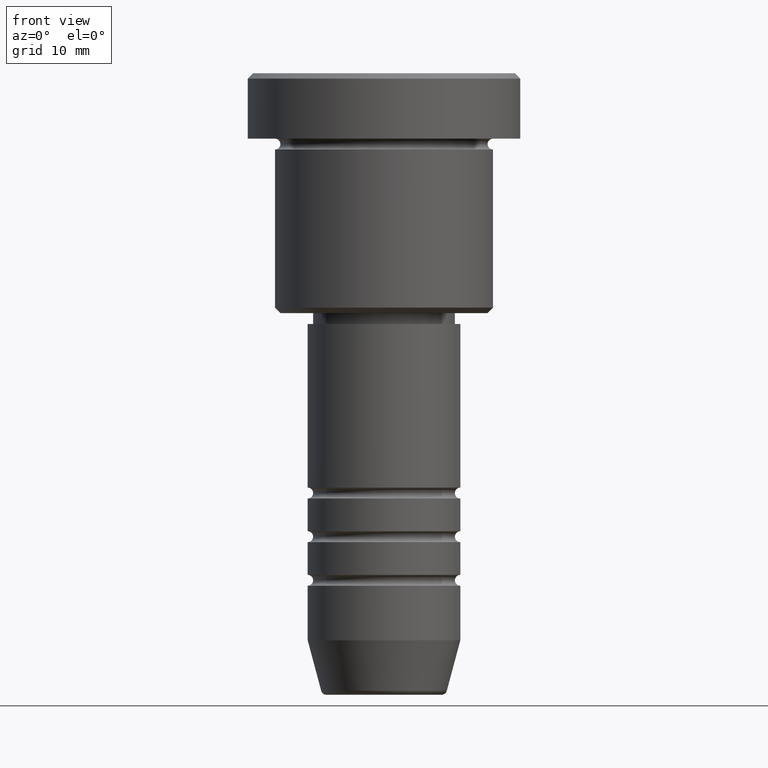
[diagram: clean part render]
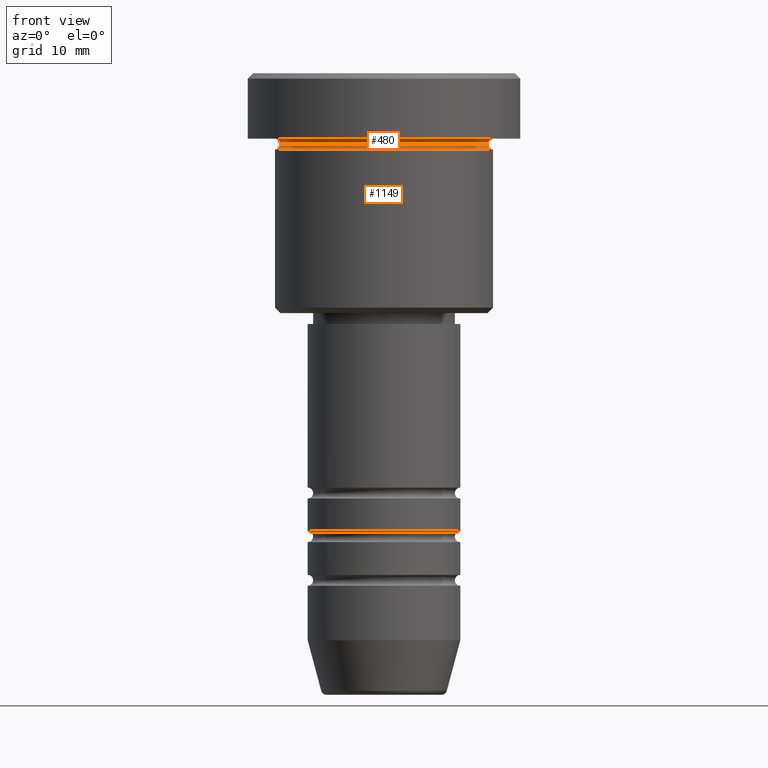
[diagram: same view with one multi-face feature highlighted, each face labeled with its STEP entity id]
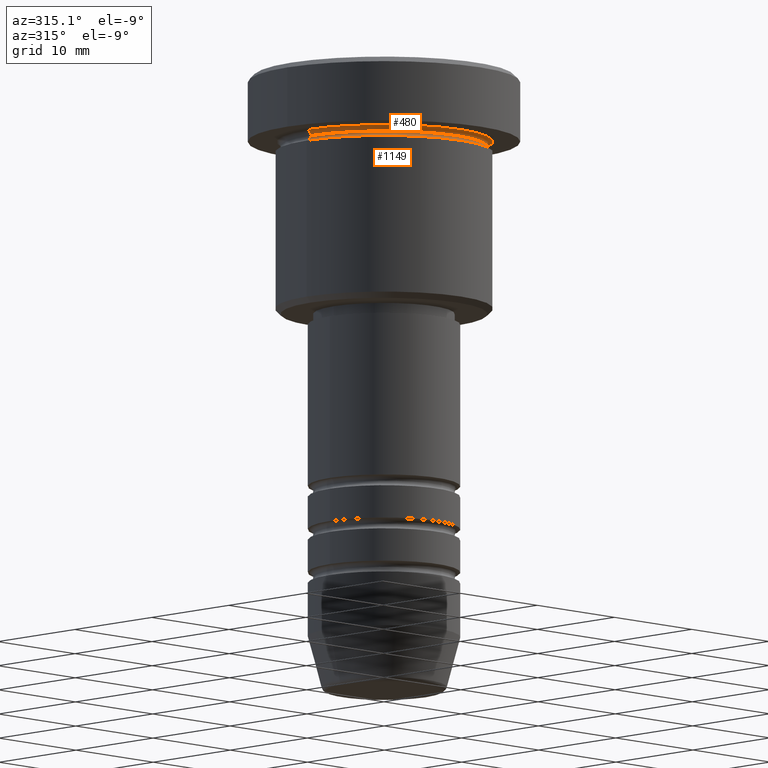
[diagram: same view with one multi-face feature highlighted, each face labeled with its STEP entity id]
A machine part, front view. The highlighted faces form ONE feature: a constant-radius fillet chain: 2 tangent blend faces with common blend radius 0.5 mm. The faces share edges in the B-rep.
A second angle (auxiliary view) of the same feature is appended — it is thin or edge-on in the first view.
Their STEP definitions:
[1] entity #480 (Torus):
#47 = CIRCLE ( 'NONE', #707, 0.5000000000000004441 ) ;
#71 = CARTESIAN_POINT ( 'NONE',  ( -9.500000000000000000, 1.194030629168669469E-15, -6.499999999999997335 ) ) ;
#125 = DIRECTION ( 'NONE',  ( -1.000000000000000000, 0.000000000000000000, 0.000000000000000000 ) ) ;
#180 = DIRECTION ( 'NONE',  ( 0.000000000000000000, 0.000000000000000000, -1.000000000000000000 ) ) ;
#223 = DIRECTION ( 'NONE',  ( -1.000000000000000000, 0.000000000000000000, 0.000000000000000000 ) ) ;
#230 = DIRECTION ( 'NONE',  ( 0.000000000000000000, 0.000000000000000000, -1.000000000000000000 ) ) ;
#259 = AXIS2_PLACEMENT_3D ( 'NONE', #273, #1009, #180 ) ;
#269 = ORIENTED_EDGE ( 'NONE', *, *, #1123, .F. ) ;
#273 = CARTESIAN_POINT ( 'NONE',  ( -10.00000000000000000, 0.000000000000000000, -6.499999999999997335 ) ) ;
#299 = VERTEX_POINT ( 'NONE', #71 ) ;
#321 = VERTEX_POINT ( 'NONE', #1092 ) ;
#335 = AXIS2_PLACEMENT_3D ( 'NONE', #1148, #409, #125 ) ;
#409 = DIRECTION ( 'NONE',  ( -0.000000000000000000, -0.000000000000000000, 1.000000000000000000 ) ) ;
#422 = CARTESIAN_POINT ( 'NONE',  ( 0.000000000000000000, 0.000000000000000000, -6.499999999999997335 ) ) ;
#442 = CARTESIAN_POINT ( 'NONE',  ( 0.000000000000000000, 0.000000000000000000, -6.499999999999997335 ) ) ;
#451 = ORIENTED_EDGE ( 'NONE', *, *, #1034, .F. ) ;
#453 = CIRCLE ( 'NONE', #259, 0.5000000000000004441 ) ;
#480 = ADVANCED_FACE ( 'NONE', ( #1182 ), #1174, .F. ) ;
#489 = AXIS2_PLACEMENT_3D ( 'NONE', #422, #230, #223 ) ;
#528 = CARTESIAN_POINT ( 'NONE',  ( 9.500000000000000000, 0.000000000000000000, -6.499999999999997335 ) ) ;
#542 = VERTEX_POINT ( 'NONE', #609 ) ;
#556 = CARTESIAN_POINT ( 'NONE',  ( 10.00000000000000000, 1.224646799147353256E-15, -6.499999999999997335 ) ) ;
#596 = DIRECTION ( 'NONE',  ( -0.000000000000000000, -0.000000000000000000, 1.000000000000000000 ) ) ;
#609 = CARTESIAN_POINT ( 'NONE',  ( -10.00000000000000000, 0.000000000000000000, -5.999999999999996447 ) ) ;
#612 = EDGE_CURVE ( 'NONE', #299, #872, #766, .T. ) ;
#707 = AXIS2_PLACEMENT_3D ( 'NONE', #556, #928, #879 ) ;
#766 = CIRCLE ( 'NONE', #1139, 9.500000000000000000 ) ;
#868 = DIRECTION ( 'NONE',  ( 1.000000000000000000, 0.000000000000000000, 0.000000000000000000 ) ) ;
#872 = VERTEX_POINT ( 'NONE', #528 ) ;
#879 = DIRECTION ( 'NONE',  ( -1.000000000000000000, -1.224646799147353454E-16, 0.000000000000000000 ) ) ;
#928 = DIRECTION ( 'NONE',  ( -1.224646799147353207E-16, 1.000000000000000000, 0.000000000000000000 ) ) ;
#1009 = DIRECTION ( 'NONE',  ( -0.000000000000000000, -1.000000000000000000, -0.000000000000000000 ) ) ;
#1010 = ORIENTED_EDGE ( 'NONE', *, *, #612, .T. ) ;
#1018 = ORIENTED_EDGE ( 'NONE', *, *, #1039, .T. ) ;
#1034 = EDGE_CURVE ( 'NONE', #299, #542, #453, .T. ) ;
#1039 = EDGE_CURVE ( 'NONE', #872, #321, #47, .T. ) ;
#1092 = CARTESIAN_POINT ( 'NONE',  ( 10.00000000000000000, 1.224646799147353256E-15, -5.999999999999996447 ) ) ;
#1102 = EDGE_LOOP ( 'NONE', ( #1010, #1018, #269, #451 ) ) ;
#1123 = EDGE_CURVE ( 'NONE', #542, #321, #1171, .T. ) ;
#1139 = AXIS2_PLACEMENT_3D ( 'NONE', #442, #596, #868 ) ;
#1148 = CARTESIAN_POINT ( 'NONE',  ( 0.000000000000000000, 0.000000000000000000, -5.999999999999996447 ) ) ;
#1171 = CIRCLE ( 'NONE', #335, 10.00000000000000000 ) ;
#1174 = TOROIDAL_SURFACE ( 'NONE', #489, 10.00000000000000000, 0.5000000000000000000 ) ;
#1182 = FACE_OUTER_BOUND ( 'NONE', #1102, .T. ) ;
[2] entity #1149 (Torus):
#3 = AXIS2_PLACEMENT_3D ( 'NONE', #911, #234, #145 ) ;
#29 = DIRECTION ( 'NONE',  ( 0.000000000000000000, 0.000000000000000000, -1.000000000000000000 ) ) ;
#63 = AXIS2_PLACEMENT_3D ( 'NONE', #785, #329, #706 ) ;
#71 = CARTESIAN_POINT ( 'NONE',  ( -9.500000000000000000, 1.194030629168669469E-15, -6.499999999999997335 ) ) ;
#82 = ORIENTED_EDGE ( 'NONE', *, *, #927, .T. ) ;
#103 = DIRECTION ( 'NONE',  ( 1.000000000000000000, 0.000000000000000000, 0.000000000000000000 ) ) ;
#116 = VERTEX_POINT ( 'NONE', #191 ) ;
#117 = CIRCLE ( 'NONE', #653, 0.5000000000000004441 ) ;
#118 = CARTESIAN_POINT ( 'NONE',  ( 10.00000000000000000, 0.000000000000000000, -6.999999999999996447 ) ) ;
#145 = DIRECTION ( 'NONE',  ( -1.000000000000000000, 1.224646799147353454E-16, 0.000000000000000000 ) ) ;
#159 = AXIS2_PLACEMENT_3D ( 'NONE', #938, #1111, #103 ) ;
#191 = CARTESIAN_POINT ( 'NONE',  ( -10.00000000000000000, 1.224646799147353256E-15, -6.999999999999996447 ) ) ;
#234 = DIRECTION ( 'NONE',  ( 1.224646799147353207E-16, 1.000000000000000000, 0.000000000000000000 ) ) ;
#256 = EDGE_LOOP ( 'NONE', ( #400, #579, #82, #775 ) ) ;
#299 = VERTEX_POINT ( 'NONE', #71 ) ;
#329 = DIRECTION ( 'NONE',  ( -0.000000000000000000, -0.000000000000000000, 1.000000000000000000 ) ) ;
#400 = ORIENTED_EDGE ( 'NONE', *, *, #612, .F. ) ;
#423 = DIRECTION ( 'NONE',  ( 0.000000000000000000, -1.000000000000000000, 0.000000000000000000 ) ) ;
#431 = CIRCLE ( 'NONE', #3, 0.5000000000000004441 ) ;
#442 = CARTESIAN_POINT ( 'NONE',  ( 0.000000000000000000, 0.000000000000000000, -6.499999999999997335 ) ) ;
#528 = CARTESIAN_POINT ( 'NONE',  ( 9.500000000000000000, 0.000000000000000000, -6.499999999999997335 ) ) ;
#579 = ORIENTED_EDGE ( 'NONE', *, *, #749, .T. ) ;
#587 = CIRCLE ( 'NONE', #159, 10.00000000000000000 ) ;
#596 = DIRECTION ( 'NONE',  ( -0.000000000000000000, -0.000000000000000000, 1.000000000000000000 ) ) ;
#612 = EDGE_CURVE ( 'NONE', #299, #872, #766, .T. ) ;
#648 = VERTEX_POINT ( 'NONE', #118 ) ;
#653 = AXIS2_PLACEMENT_3D ( 'NONE', #966, #423, #29 ) ;
#706 = DIRECTION ( 'NONE',  ( 1.000000000000000000, 0.000000000000000000, 0.000000000000000000 ) ) ;
#749 = EDGE_CURVE ( 'NONE', #299, #116, #431, .T. ) ;
#766 = CIRCLE ( 'NONE', #1139, 9.500000000000000000 ) ;
#772 = FACE_OUTER_BOUND ( 'NONE', #256, .T. ) ;
#775 = ORIENTED_EDGE ( 'NONE', *, *, #1058, .F. ) ;
#785 = CARTESIAN_POINT ( 'NONE',  ( 0.000000000000000000, 0.000000000000000000, -6.499999999999997335 ) ) ;
#838 = TOROIDAL_SURFACE ( 'NONE', #63, 10.00000000000000000, 0.5000000000000000000 ) ;
#868 = DIRECTION ( 'NONE',  ( 1.000000000000000000, 0.000000000000000000, 0.000000000000000000 ) ) ;
#872 = VERTEX_POINT ( 'NONE', #528 ) ;
#911 = CARTESIAN_POINT ( 'NONE',  ( -10.00000000000000000, 1.224646799147353256E-15, -6.499999999999997335 ) ) ;
#927 = EDGE_CURVE ( 'NONE', #116, #648, #587, .T. ) ;
#938 = CARTESIAN_POINT ( 'NONE',  ( 0.000000000000000000, 0.000000000000000000, -6.999999999999996447 ) ) ;
#966 = CARTESIAN_POINT ( 'NONE',  ( 10.00000000000000000, 0.000000000000000000, -6.499999999999997335 ) ) ;
#1058 = EDGE_CURVE ( 'NONE', #872, #648, #117, .T. ) ;
#1111 = DIRECTION ( 'NONE',  ( -0.000000000000000000, -0.000000000000000000, 1.000000000000000000 ) ) ;
#1139 = AXIS2_PLACEMENT_3D ( 'NONE', #442, #596, #868 ) ;
#1149 = ADVANCED_FACE ( 'NONE', ( #772 ), #838, .F. ) ;